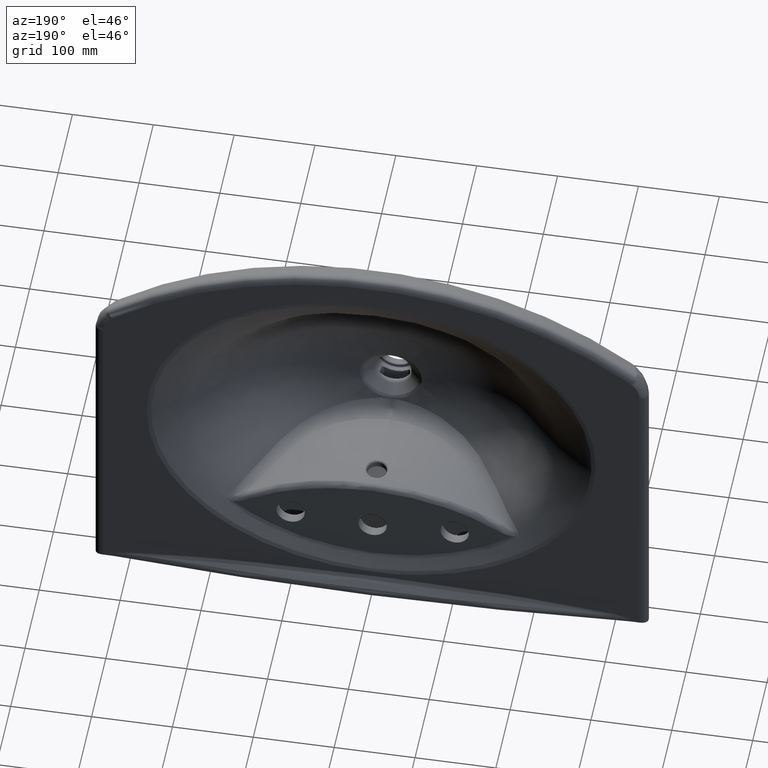
[diagram: clean part render]
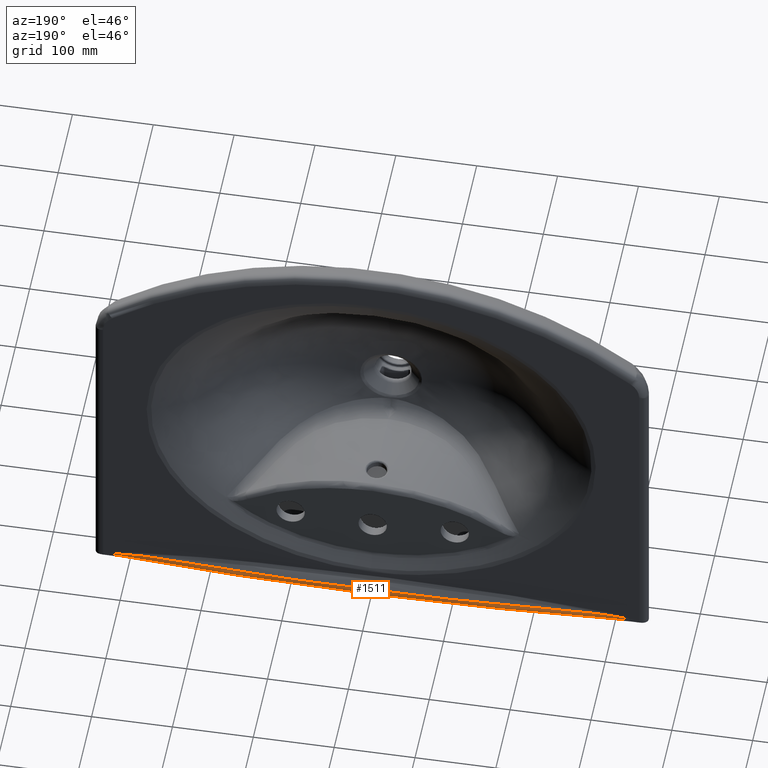
[diagram: same view with one face highlighted and labeled with its STEP entity id]
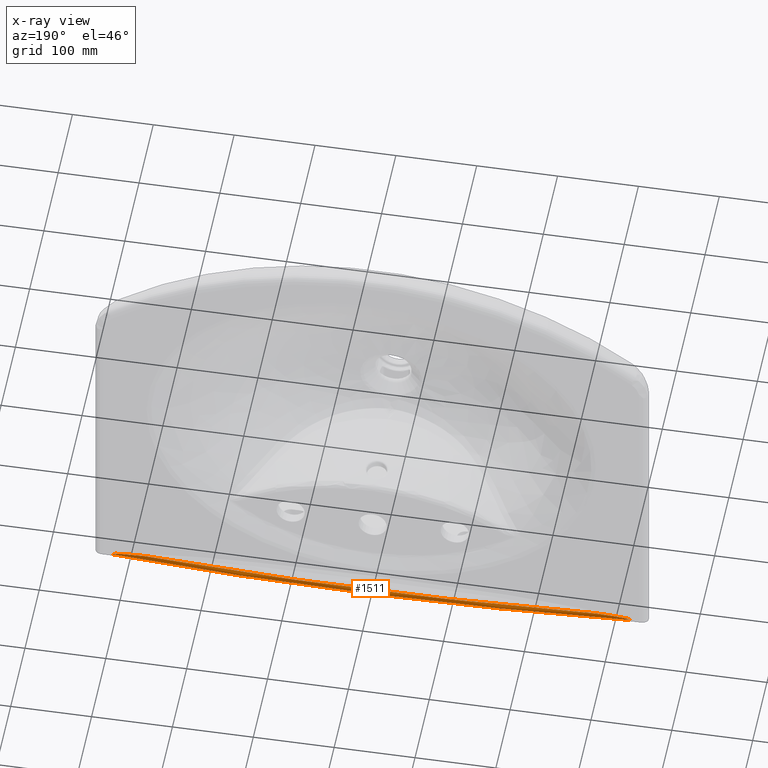
[diagram: x-ray of the same camera — body ghosted, the highlighted face saturated]
A machine part, auxiliary view. The second image highlights one B-rep face of the part: STEP entity #1511.
The next image is the same camera in x-ray: the body ghosted, the highlighted face saturated — about 0% of this face is hidden behind the body in this view.
In plain terms, the highlighted face is a SurfaceOfRevolution surface.
Its self-contained STEP definition (entity closure, byte-faithful):
#103=SURFACE_OF_REVOLUTION('',#7261,#106);
#106=AXIS1_PLACEMENT('',#42729,#8269);
#381=CIRCLE('',#7567,4660.045454546);
#382=CIRCLE('',#7569,4658.599857353);
#1511=ADVANCED_FACE('',(#2036),#103,.T.);
#2036=FACE_OUTER_BOUND('',#2524,.T.);
#2524=EDGE_LOOP('',(#4620,#4621,#4622,#4623));
#4620=ORIENTED_EDGE('',*,*,#6543,.T.);
#4621=ORIENTED_EDGE('',*,*,#6540,.T.);
#4622=ORIENTED_EDGE('',*,*,#6544,.F.);
#4623=ORIENTED_EDGE('',*,*,#6536,.T.);
#5451=VERTEX_POINT('',#41997);
#5452=VERTEX_POINT('',#42052);
#5453=VERTEX_POINT('',#42295);
#5454=VERTEX_POINT('',#42492);
#6536=EDGE_CURVE('',#5452,#5451,#7254,.T.);
#6540=EDGE_CURVE('',#5454,#5453,#7258,.T.);
#6543=EDGE_CURVE('',#5451,#5454,#381,.T.);
#6544=EDGE_CURVE('',#5452,#5453,#382,.T.);
#7254=B_SPLINE_CURVE_WITH_KNOTS('',3,(#42006,#42007,#42008,#42009,#42010,
#42011,#42012,#42013,#42014,#42015,#42016,#42017,#42018,#42019,#42020,#42021,
#42022,#42023,#42024,#42025,#42026,#42027,#42028,#42029,#42030,#42031,#42032,
#42033,#42034,#42035,#42036,#42037,#42038,#42039,#42040,#42041,#42042,#42043,
#42044,#42045,#42046,#42047,#42048,#42049,#42050,#42051),.UNSPECIFIED.,
 .F.,.F.,(4,2,1,1,2,2,2,1,1,2,2,2,2,2,2,2,2,2,2,2,2,2,2,2,4),(0.,0.124999999999993,
0.187499999999992,0.218749999999991,0.234374999999989,0.249999999999986,
0.374999999999956,0.437499999999943,0.468749999999938,0.484374999999938,
0.499999999999938,0.624999999999949,0.687499999999954,0.718749999999959,
0.749999999999963,0.812499999999973,0.843749999999978,0.85937499999998,
0.874999999999982,0.890624999999985,0.906249999999987,0.921874999999989,
0.937499999999991,0.968749999999996,1.),.UNSPECIFIED.);
#7258=B_SPLINE_CURVE_WITH_KNOTS('',3,(#42449,#42450,#42451,#42452,#42453,
#42454,#42455,#42456,#42457,#42458,#42459,#42460,#42461,#42462,#42463,#42464,
#42465,#42466,#42467,#42468,#42469,#42470,#42471,#42472,#42473,#42474,#42475,
#42476,#42477,#42478,#42479,#42480,#42481,#42482,#42483,#42484,#42485,#42486,
#42487,#42488,#42489,#42490,#42491),.UNSPECIFIED.,.F.,.F.,(4,2,2,2,2,2,
2,2,2,2,2,2,2,2,1,2,2,2,1,1,2,2,4),(0.,0.0312500000000059,0.0625000000000118,
0.0781250000000126,0.0937500000000134,0.109375000000014,0.125000000000015,
0.156250000000012,0.18750000000001,0.218750000000007,0.250000000000005,
0.312500000000004,0.375000000000003,0.437500000000002,0.468749999999999,
0.484374999999996,0.499999999999993,0.624999999999987,0.687499999999985,
0.718749999999987,0.734374999999987,0.749999999999988,1.),.UNSPECIFIED.);
#7261=B_SPLINE_CURVE_WITH_KNOTS('',3,(#42725,#42726,#42727,#42728),
 .UNSPECIFIED.,.F.,.F.,(4,4),(0.,1.),.UNSPECIFIED.);
#7567=AXIS2_PLACEMENT_3D('',#42722,#8263,#8264);
#7569=AXIS2_PLACEMENT_3D('',#42724,#8267,#8268);
#8263=DIRECTION('',(0.,0.,1.));
#8264=DIRECTION('',(0.0686100606894318,0.997643553365726,0.));
#8267=DIRECTION('',(0.,0.,1.));
#8268=DIRECTION('',(0.0599734468908118,0.99819997278503,0.));
#8269=DIRECTION('',(0.,0.,1.));
#41997=CARTESIAN_POINT('',(319.7260012862,140.0188491636,-227.6551375755));
#42006=CARTESIAN_POINT('',(279.392291133755,141.168796280215,-222.4761229395));
#42007=CARTESIAN_POINT('',(281.242094961061,141.121603613692,-222.581556016456));
#42008=CARTESIAN_POINT('',(283.031248236005,141.075129833607,-222.688064736915));
#42009=CARTESIAN_POINT('',(285.62399379534,141.006724634514,-222.849465854576));
#42010=CARTESIAN_POINT('',(286.897620491195,140.972848057155,-222.930575926171));
#42011=CARTESIAN_POINT('',(288.343710834508,140.933941958869,-223.025926402616));
#42012=CARTESIAN_POINT('',(288.954933474197,140.917404739337,-223.066946201834));
#42013=CARTESIAN_POINT('',(289.36051957605,140.906410847178,-223.094327312585));
#42014=CARTESIAN_POINT('',(289.524574230719,140.901957521551,-223.105453332351));
#42015=CARTESIAN_POINT('',(291.672765777196,140.843512159736,-223.252216244997));
#42016=CARTESIAN_POINT('',(293.489745885322,140.79316100668,-223.383747077747));
#42017=CARTESIAN_POINT('',(296.076423812701,140.720477710504,-223.582668290066));
#42018=CARTESIAN_POINT('',(297.335064734,140.68484614261,-223.682535137661));
#42019=CARTESIAN_POINT('',(298.742756191644,140.644607309266,-223.799760144806));
#42020=CARTESIAN_POINT('',(299.333040330998,140.627656357175,-223.850152662477));
#42021=CARTESIAN_POINT('',(299.723671475408,140.61642209734,-223.883781758068));
#42022=CARTESIAN_POINT('',(299.882686202139,140.611843513542,-223.897561439372));
#42023=CARTESIAN_POINT('',(301.928197088552,140.552842879164,-224.076666447687));
#42024=CARTESIAN_POINT('',(303.558272739706,140.505227766757,-224.230467009066));
#42025=CARTESIAN_POINT('',(306.190226246706,140.427243253995,-224.504930415588));
#42026=CARTESIAN_POINT('',(306.971847855961,140.403915369485,-224.590217533898));
#42027=CARTESIAN_POINT('',(308.30263358014,140.36415106889,-224.745344724634));
#42028=CARTESIAN_POINT('',(308.735818242084,140.351193001501,-224.797533290532));
#42029=CARTESIAN_POINT('',(309.581363904649,140.325851159997,-224.902879655649));
#42030=CARTESIAN_POINT('',(309.942874233222,140.314999030745,-224.949250464275));
#42031=CARTESIAN_POINT('',(311.301269908672,140.274083548903,-225.130554237008));
#42032=CARTESIAN_POINT('',(312.100977621294,140.249864424415,-225.245443328392));
#42033=CARTESIAN_POINT('',(313.396021295793,140.210497486244,-225.45154132697));
#42034=CARTESIAN_POINT('',(313.781138473735,140.1987635556,-225.515761644953));
#42035=CARTESIAN_POINT('',(314.433001796966,140.178957641549,-225.632022294462));
#42036=CARTESIAN_POINT('',(314.645329553318,140.172512047783,-225.671180914677));
#42037=CARTESIAN_POINT('',(315.060063334702,140.159912917438,-225.750315227183));
#42038=CARTESIAN_POINT('',(315.231159689894,140.154713709923,-225.783886443352));
#42039=CARTESIAN_POINT('',(315.688667612045,140.140768717583,-225.87747090406));
#42040=CARTESIAN_POINT('',(315.906599653667,140.134116373131,-225.924028280474));
#42041=CARTESIAN_POINT('',(316.32082175359,140.121489224263,-226.016665462209));
#42042=CARTESIAN_POINT('',(316.485247996605,140.116479606208,-226.054870428681));
#42043=CARTESIAN_POINT('',(316.919915609568,140.103313095871,-226.162294393999));
#42044=CARTESIAN_POINT('',(317.128796195256,140.097017573828,-226.217201943067));
#42045=CARTESIAN_POINT('',(317.529643621752,140.084902289271,-226.329437982357));
#42046=CARTESIAN_POINT('',(317.68566169892,140.080186244025,-226.375295685085));
#42047=CARTESIAN_POINT('',(318.344026435591,140.059972794458,-226.585371395184));
#42048=CARTESIAN_POINT('',(318.637884748741,140.051244287185,-226.688776255078));
#42049=CARTESIAN_POINT('',(319.425875074943,140.02772480307,-227.111039264545));
#42050=CARTESIAN_POINT('',(319.727359848437,140.018758153269,-227.364342983813));
#42051=CARTESIAN_POINT('',(319.726001451907,140.018851573103,-227.6551375755));
#42052=CARTESIAN_POINT('',(279.3922868291,141.1687246334,-222.4761663894));
#42295=CARTESIAN_POINT('',(-279.392286872,141.1687253704,-222.4761659424));
#42449=CARTESIAN_POINT('',(-319.72600145186,140.018851573106,-227.6551375761));
#42450=CARTESIAN_POINT('',(-319.727288976883,140.018763027272,-227.364451222725));
#42451=CARTESIAN_POINT('',(-319.364735584266,140.029552462526,-227.078322066821));
#42452=CARTESIAN_POINT('',(-318.699127348983,140.049413736284,-226.721551279661));
#42453=CARTESIAN_POINT('',(-318.272185455001,140.062178049786,-226.562447944729));
#42454=CARTESIAN_POINT('',(-317.721742064387,140.079079241417,-226.386812944596));
#42455=CARTESIAN_POINT('',(-317.529788659723,140.084899065809,-226.329489413393));
#42456=CARTESIAN_POINT('',(-317.128944907678,140.097014863437,-226.217254441612));
#42457=CARTESIAN_POINT('',(-316.88815742028,140.104276999988,-226.154459489801));
#42458=CARTESIAN_POINT('',(-316.517241338871,140.115512035944,-226.062786033605));
#42459=CARTESIAN_POINT('',(-316.320957666017,140.121486483442,-226.016705368436));
#42460=CARTESIAN_POINT('',(-315.906737200606,140.134113195327,-225.924063945809));
#42461=CARTESIAN_POINT('',(-315.658066696211,140.14170219124,-225.871216188162));
#42462=CARTESIAN_POINT('',(-315.063974978619,140.159809487951,-225.749686618915));
#42463=CARTESIAN_POINT('',(-314.648162320831,140.172418761419,-225.670364922392));
#42464=CARTESIAN_POINT('',(-313.777048214006,140.198888473127,-225.515059518887));
#42465=CARTESIAN_POINT('',(-313.39623962619,140.210494282095,-225.451565950851));
#42466=CARTESIAN_POINT('',(-312.523577019155,140.23702058559,-225.31273287581));
#42467=CARTESIAN_POINT('',(-312.126504865951,140.24905855872,-225.252815606789));
#42468=CARTESIAN_POINT('',(-311.287177006235,140.274468098012,-225.131101695233));
#42469=CARTESIAN_POINT('',(-310.799025800936,140.289212594789,-225.063525142886));
#42470=CARTESIAN_POINT('',(-309.589300685715,140.325649751187,-224.902061788153));
#42471=CARTESIAN_POINT('',(-308.741423118111,140.351038424076,-224.796452993123));
#42472=CARTESIAN_POINT('',(-306.962900954123,140.404184217438,-224.589215613381));
#42473=CARTESIAN_POINT('',(-306.190952987878,140.427230475409,-224.504995896915));
#42474=CARTESIAN_POINT('',(-304.416507801292,140.479802612286,-224.320013173431));
#42475=CARTESIAN_POINT('',(-303.604935793919,140.503653942338,-224.239656891511));
#42476=CARTESIAN_POINT('',(-302.328830630031,140.540948827683,-224.11821845553));
#42477=CARTESIAN_POINT('',(-301.679284381573,140.559872890557,-224.057706659793));
#42478=CARTESIAN_POINT('',(-301.012498093058,140.579203033792,-223.997504430075));
#42479=CARTESIAN_POINT('',(-300.564142831939,140.592178997754,-223.957438229051));
#42480=CARTESIAN_POINT('',(-300.302455657579,140.599738253316,-223.9343228063));
#42481=CARTESIAN_POINT('',(-298.570723678929,140.649688166438,-223.782691374103));
#42482=CARTESIAN_POINT('',(-296.938833878195,140.696247482438,-223.648996327089));
#42483=CARTESIAN_POINT('',(-294.352146498432,140.768931491093,-223.450073978274));
#42484=CARTESIAN_POINT('',(-293.024089651061,140.805983975034,-223.35101785991));
#42485=CARTESIAN_POINT('',(-291.413943438808,140.850360785086,-223.236158519489));
#42486=CARTESIAN_POINT('',(-290.71086382495,140.869614970922,-223.187084110967));
#42487=CARTESIAN_POINT('',(-290.239251445496,140.88250224322,-223.154401367017));
#42488=CARTESIAN_POINT('',(-289.964240443558,140.889998734786,-223.135497105822));
#42489=CARTESIAN_POINT('',(-286.54825494825,140.982936051882,-222.902117598724));
#42490=CARTESIAN_POINT('',(-283.091236821057,141.074425293872,-222.686947172856));
#42491=CARTESIAN_POINT('',(-279.39229113238,141.168796280298,-222.4761229395));
#42492=CARTESIAN_POINT('',(-319.7260013247,140.0188497241,-227.6551375761));
#42722=CARTESIAN_POINT('',(0.,-4509.045454546,-227.6551375765));
#42724=CARTESIAN_POINT('',(0.,-4509.045454546,-222.4761229395));
#42725=CARTESIAN_POINT('',(320.7670208006,139.9471413614,-227.6551375765));
#42726=CARTESIAN_POINT('',(320.7670208006,139.9471413614,-225.7942981517));
#42727=CARTESIAN_POINT('',(320.7338523184,139.4664185365,-224.0679599394));
#42728=CARTESIAN_POINT('',(320.6675153539,138.5049728866,-222.4761229395));
#42729=CARTESIAN_POINT('',(0.,-4509.045454546,-227.6551375765));